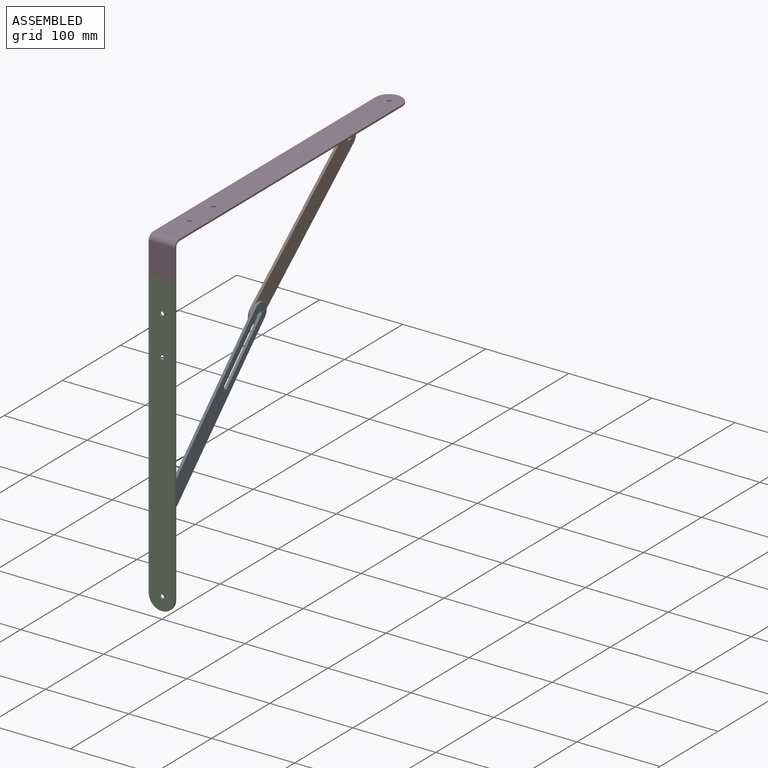
[diagram: assembled view]
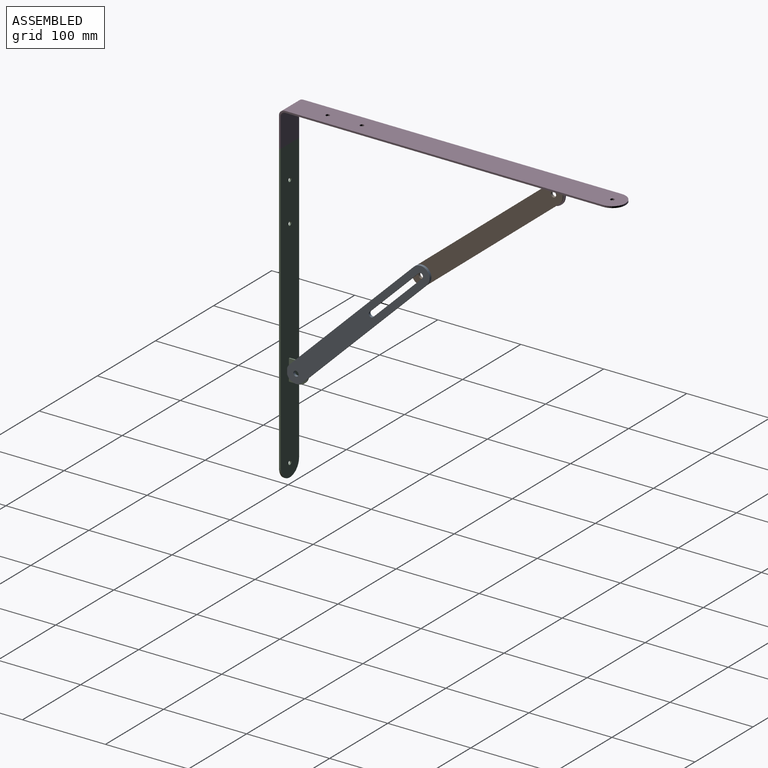
[diagram: assembled view, second angle]
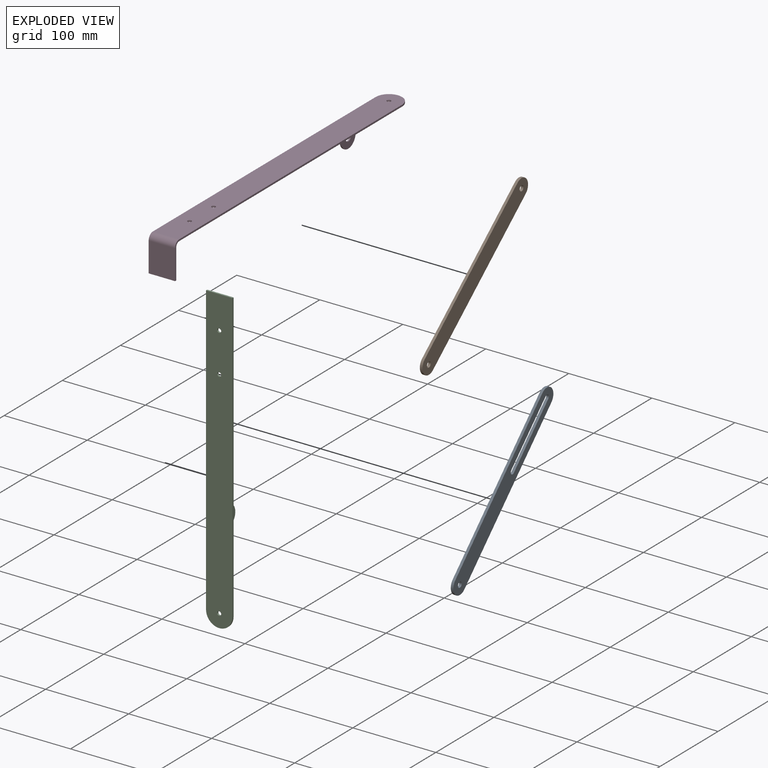
[diagram: exploded view]
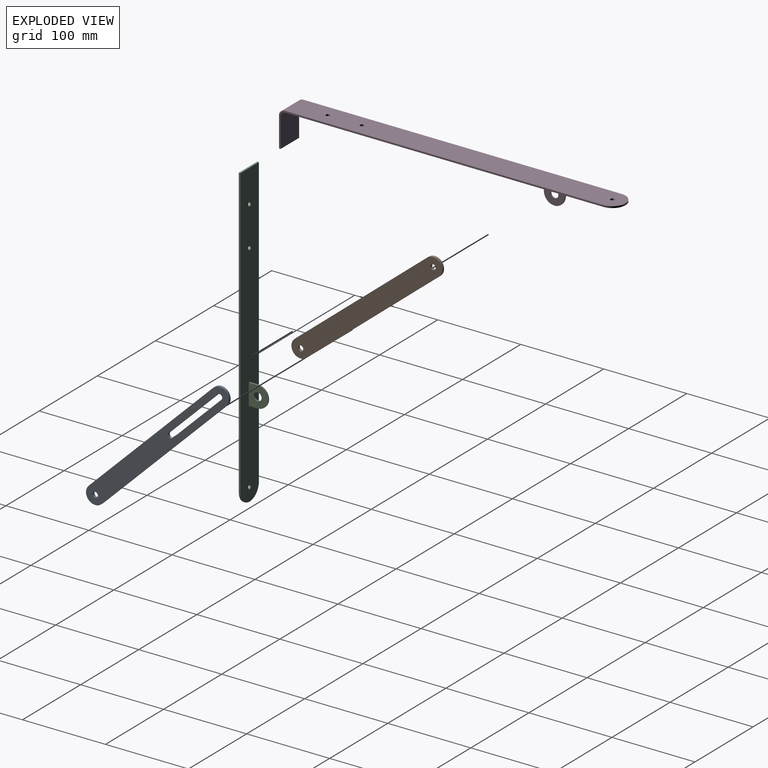
[diagram: exploded view, second angle]
ASSEMBLY  parts=4 mates=3
PART A: 11 faces, bbox 3.2x178.2x162.1 mm
  f0: cylinder r=11.11mm len=19.39mm, axis (-1,0,0), area 110.8mm2, adj f1,f8,f9,f10
  f1: plane 156x139.91mm, normal (0,-0.67,0.74), area 665.3mm2, adj f0,f2,f9,f10
  f2: cylinder r=11.11mm len=19.39mm, axis (-1,0,0), area 110.8mm2, adj f1,f8,f9,f10
  f3: plane 61.45x55.12mm, normal (0,0.67,-0.74), area 262.1mm2, adj f4,f6,f9,f10
  f4: cylinder r=3.17mm len=5.54mm, axis (-1,0,0), area 31.7mm2, adj f3,f5,f9,f10
  f5: plane 61.45x55.12mm, normal (0,-0.67,0.74), area 262.1mm2, adj f4,f6,f9,f10
  f6: cylinder r=3.17mm len=5.54mm, axis (-1,0,0), area 31.7mm2, adj f3,f5,f9,f10
  f7: cylinder r=3.17mm len=6.35mm, axis (-1,0,0), area 63.3mm2, adj f9,f10
  f8: plane 156x139.91mm, normal (0,0.67,-0.74), area 665.3mm2, adj f0,f2,f9,f10
  f9: plane 178.22x162.14mm, normal (1,0,0), area 4457.7mm2, adj f0,f1,f2,f3,f4,f5,f6,f7
  f10: plane 178.22x162.14mm, normal (-1,0,0), area 4457.7mm2, adj f0,f1,f2,f3,f4,f5,f6,f7
PART B: 8 faces, bbox 3.2x175.9x160 mm
  f0: cylinder r=11.11mm len=19.39mm, axis (-1,0,0), area 110.8mm2, adj f1,f5,f6,f7
  f1: plane 153.63x137.8mm, normal (0,-0.67,0.74), area 655.2mm2, adj f0,f2,f6,f7
  f2: cylinder r=11.11mm len=19.39mm, axis (-1,0,0), area 110.8mm2, adj f1,f5,f6,f7
  f3: cylinder r=3.17mm len=6.35mm, axis (-1,0,0), area 63.3mm2, adj f6,f7
  f4: cylinder r=3.17mm len=6.35mm, axis (-1,0,0), area 63.3mm2, adj f6,f7
  f5: plane 153.63x137.8mm, normal (0,0.67,-0.74), area 655.2mm2, adj f0,f2,f6,f7
  f6: plane 175.86x160.02mm, normal (1,0,0), area 4911.3mm2, adj f0,f1,f2,f3,f4,f5
  f7: plane 175.86x160.02mm, normal (-1,0,0), area 4911.3mm2, adj f0,f1,f2,f3,f4,f5
PART C: 15 faces, bbox 31.8x25.4x363.5 mm
  f0: plane 31.75x2.03mm, normal (0,0,1), area 64.5mm2, adj f1,f5,f7,f8
  f1: plane 347.66x2.03mm, normal (-1,0,0), area 706.5mm2, adj f0,f2,f7,f8
  f2: cylinder r=15.88mm len=31.75mm, axis (0,-1,0), area 101.3mm2, adj f1,f5,f7,f8
  f3: cylinder r=2.38mm len=4.76mm, axis (0,-1,0), area 30.4mm2, adj f7,f8
  f4: cylinder r=2.38mm len=4.76mm, axis (0,-1,0), area 30.4mm2, adj f7,f8
  f5: plane 347.66x2.03mm, normal (1,0,0), area 706.5mm2, adj f0,f2,f7,f8
  f6: cylinder r=2.38mm len=4.76mm, axis (0,-1,0), area 30.4mm2, adj f7,f8
  f7: plane 363.54x31.75mm, normal (0,1,0), area 11340.4mm2, adj f0,f1,f2,f3,f4,f5,f6,f9
  f8: plane 363.54x31.75mm, normal (0,-1,0), area 11380.7mm2, adj f0,f1,f2,f3,f4,f5,f6
  f9: plane 10.67x1.59mm, normal (0,0,-1), area 16.9mm2, adj f7,f11,f12,f13
  f10: plane 10.67x1.59mm, normal (0,0,1), area 16.9mm2, adj f7,f11,f12,f13
  f11: plane 25.4x23.37mm, normal (1,0,0), area 453.1mm2, adj f7,f9,f10,f13,f14
  f12: plane 25.4x23.37mm, normal (-1,0,0), area 453.1mm2, adj f7,f9,f10,f13,f14
  f13: cylinder r=12.7mm len=25.4mm, axis (-1,0,0), area 63.3mm2, adj f9,f10,f11,f12
  f14: cylinder r=4.76mm len=9.53mm, axis (-1,0,0), area 47.5mm2, adj f11,f12
PART D: 19 faces, bbox 31.8x406.4x42.9 mm
  f0: plane 399.29x31.75mm, normal (0,0,-1), area 12475.5mm2, adj f3,f7,f8,f9,f10,f11,f12,f13
  f1: plane 31.75x2.03mm, normal (0,0,-1), area 64.5mm2, adj f2,f6,f7,f8
  f2: plane 35.75x31.75mm, normal (0,1,0), area 1135.1mm2, adj f1,f3,f7,f8
  f3: cylinder r=5.08mm len=31.75mm, axis (-1,0,0), area 253.4mm2, adj f0,f2,f7,f8
  f4: plane 399.29x31.75mm, normal (0,0,1), area 12515.8mm2, adj f5,f7,f8,f9,f10,f11,f12
  f5: cylinder r=7.11mm len=31.75mm, axis (-1,0,0), area 354.7mm2, adj f4,f6,f7,f8
  f6: plane 35.75x31.75mm, normal (0,-1,0), area 1135.1mm2, adj f1,f5,f7,f8
  f7: plane 390.53x42.86mm, normal (1,0,0), area 871.2mm2, adj f0,f1,f2,f3,f4,f5,f6,f9
  f8: plane 390.53x42.86mm, normal (-1,0,0), area 871.2mm2, adj f0,f1,f2,f3,f4,f5,f6,f9
  f9: cylinder r=15.88mm len=31.75mm, axis (0,0,-1), area 101.3mm2, adj f0,f4,f7,f8
  f10: cylinder r=2.38mm len=4.76mm, axis (0,0,1), area 30.4mm2, adj f0,f4
  f11: cylinder r=2.38mm len=4.76mm, axis (0,0,1), area 30.4mm2, adj f0,f4
  f12: cylinder r=2.38mm len=4.76mm, axis (0,0,1), area 30.4mm2, adj f0,f4
  f13: plane 10.67x1.59mm, normal (0,-1,0), area 16.9mm2, adj f0,f15,f16,f17
  f14: plane 10.67x1.59mm, normal (0,1,0), area 16.9mm2, adj f0,f15,f16,f17
  f15: plane 25.4x23.37mm, normal (-1,0,0), area 453.1mm2, adj f0,f13,f14,f17,f18
  f16: plane 25.4x23.37mm, normal (1,0,0), area 453.1mm2, adj f0,f13,f14,f17,f18
  f17: cylinder r=12.7mm len=25.4mm, axis (1,0,0), area 63.3mm2, adj f13,f14,f15,f16
  f18: cylinder r=4.76mm len=9.53mm, axis (1,0,0), area 47.5mm2, adj f15,f16
PLACE A rot(axis=(1,0,0),2.5deg) t=(3.18,-12.45,-0.82)mm
PLACE B rot(axis=(-1,0,0),2.5deg) t=(0,0.85,13.91)mm
PLACE C at identity fixed
PLACE D rot(axis=(-1,0,0),0deg) t=(0,0,0)mm
MATE revolute D.f17 <-> B.f0  axis (-1,0,0) through (-1.59,320.67,-12.7)mm
MATE revolute C.f13 <-> A.f2  axis (1,0,0) through (1.59,12.7,-288.93)mm
MATE revolute C.f12 <-> D.f16  axis (1,0,0) through (0,2.03,-42.86)mm
